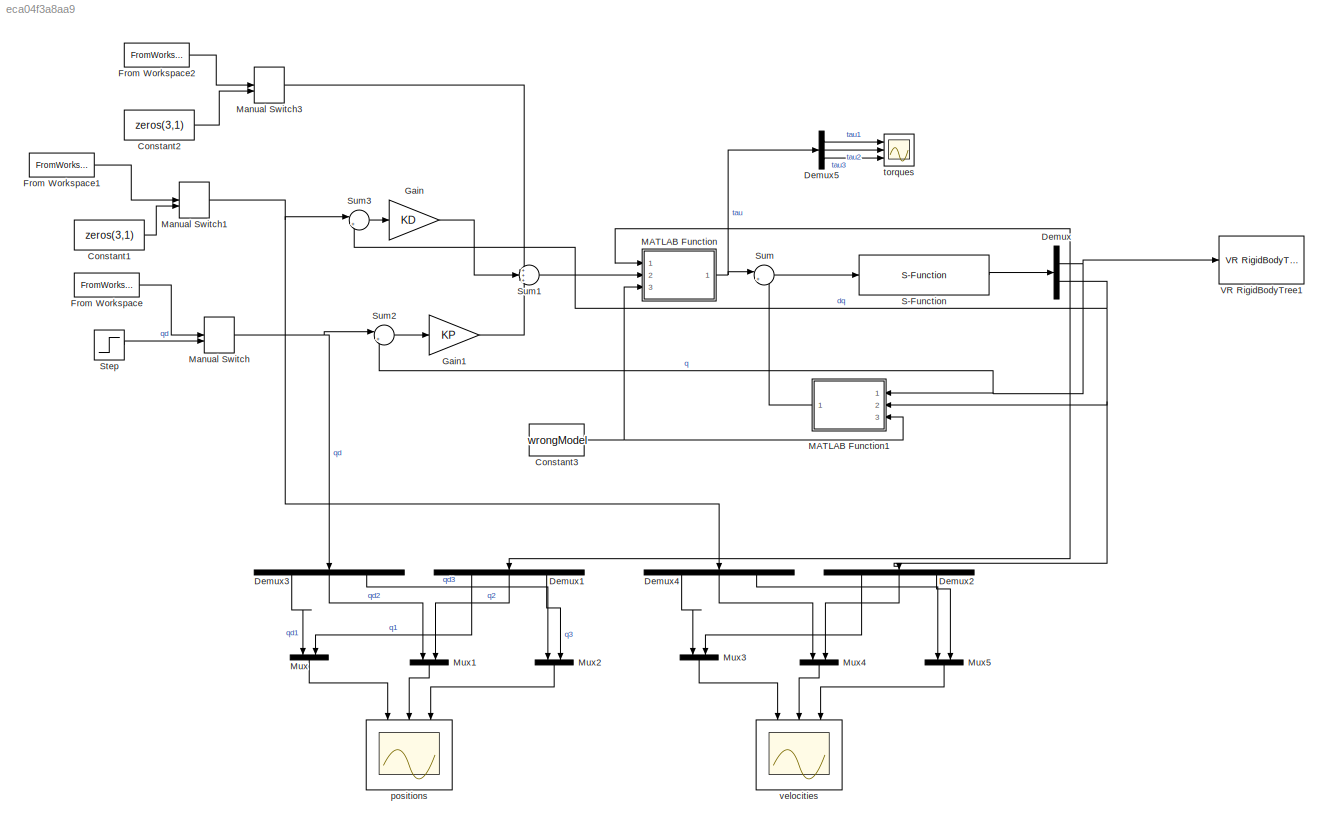
MODEL slx_eca04f3a8aa9
KIND model
CONFIG AbsTol = auto
CONFIG EnableMultiTasking = off
CONFIG FixedStep = Ts
CONFIG MaxStep = auto
CONFIG MinStep = auto
CONFIG RelTol = 1e-3
CONFIG SampleTimeConstraint = Unconstrained
CONFIG SolverName = FixedStepAuto
CONFIG StartTime = 0.0
CONFIG StopTime = 5
BLOCK [Constant] Constant1
  Value = zeros(3,1)
BLOCK [Constant] Constant2
  Value = zeros(3,1)
BLOCK [Constant] Constant3
  Value = wrongModel
BLOCK [Demux] Demux
  Outputs = 2
  Ports = [1, 2]
BLOCK [Demux] Demux1
  NameLocation = left
  Outputs = myRobot.N
  Ports = [1, 3]
BLOCK [Demux] Demux2
  NameLocation = left
  Outputs = myRobot.N
  Ports = [1, 3]
BLOCK [Demux] Demux3
  NameLocation = left
  Outputs = myRobot.N
  Ports = [1, 3]
BLOCK [Demux] Demux4
  NameLocation = left
  Outputs = myRobot.N
  Ports = [1, 3]
BLOCK [Demux] Demux5
  Outputs = 3
  Ports = [1, 3]
BLOCK [FromWorkspace] From Workspace
  VariableName = qd
BLOCK [FromWorkspace] From Workspace1
  VariableName = dqd
BLOCK [FromWorkspace] From Workspace2
  VariableName = ddqd
BLOCK [Gain] Gain
  Gain = KD
BLOCK [Gain] Gain1
  Gain = KP
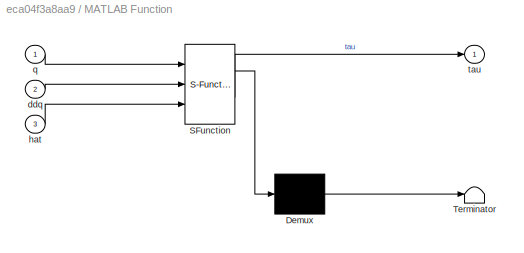
BLOCK [SubSystem] MATLAB Function
  ErrorFcn = Stateflow.Translate.translate
  PermitHierarchicalResolution = ExplicitOnly
  Ports = [3, 1]
  RequestExecContextInheritance = off
  SFBlockType = MATLAB Function
  TreatAsAtomicUnit = on
BLOCK [Demux] MATLAB Function/ Demux 
  Outputs = 1
  Ports = [1, 1]
BLOCK [S-Function] MATLAB Function/ SFunction 
  EnableBusSupport = on
  FunctionName = sf_sfun
  PortCounts = [3 2]
  Ports = [3, 2]
  SFcnIsStateOwnerBlock = off
  SFunctionDeploymentMode = off
  Tag = Stateflow S-Function 2
BLOCK [Terminator] MATLAB Function/ Terminator 
BLOCK [Inport] MATLAB Function/ddq
  Port = 2
BLOCK [Inport] MATLAB Function/hat
  Port = 3
BLOCK [Inport] MATLAB Function/q
BLOCK [Outport] MATLAB Function/tau
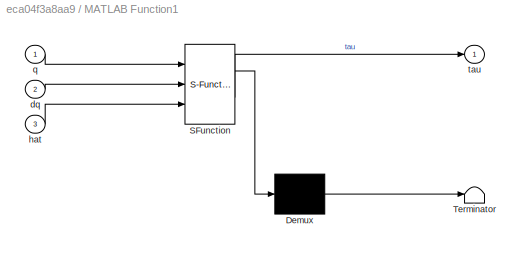
BLOCK [SubSystem] MATLAB Function1
  ErrorFcn = Stateflow.Translate.translate
  PermitHierarchicalResolution = ExplicitOnly
  Ports = [3, 1]
  RequestExecContextInheritance = off
  SFBlockType = MATLAB Function
  TreatAsAtomicUnit = on
BLOCK [Demux] MATLAB Function1/ Demux 
  Outputs = 1
  Ports = [1, 1]
BLOCK [S-Function] MATLAB Function1/ SFunction 
  EnableBusSupport = on
  FunctionName = sf_sfun
  PortCounts = [3 2]
  Ports = [3, 2]
  SFcnIsStateOwnerBlock = off
  SFunctionDeploymentMode = off
  Tag = Stateflow S-Function 1
BLOCK [Terminator] MATLAB Function1/ Terminator 
BLOCK [Inport] MATLAB Function1/dq
  Port = 2
BLOCK [Inport] MATLAB Function1/hat
  Port = 3
BLOCK [Inport] MATLAB Function1/q
BLOCK [Outport] MATLAB Function1/tau
BLOCK [ManualSwitch] Manual Switch
BLOCK [ManualSwitch] Manual Switch1
BLOCK [ManualSwitch] Manual Switch3
BLOCK [Mux] Mux
  DisplayOption = bar
  Inputs = 2
  NameLocation = left
  Ports = [2, 1]
BLOCK [Mux] Mux1
  DisplayOption = bar
  Inputs = 2
  NameLocation = left
  Ports = [2, 1]
BLOCK [Mux] Mux2
  DisplayOption = bar
  Inputs = 2
  NameLocation = left
  Ports = [2, 1]
BLOCK [Mux] Mux3
  DisplayOption = bar
  Inputs = 2
  NameLocation = left
  Ports = [2, 1]
BLOCK [Mux] Mux4
  DisplayOption = bar
  Inputs = 2
  NameLocation = left
  Ports = [2, 1]
BLOCK [Mux] Mux5
  DisplayOption = bar
  Inputs = 2
  NameLocation = left
  Ports = [2, 1]
BLOCK [S-Function] S-Function
  EnableBusSupport = off
  FunctionName = fwd_dyn_joint_lagrangian
  Parameters = myRobot,qi,dqi
  Ports = [1, 1]
  SFcnIsStateOwnerBlock = off
  SFunctionDeploymentMode = off
BLOCK [Step] Step
  After = ones(3,1)
  SampleTime = 0
  Time = 0
BLOCK [Sum] Sum
  Inputs = |++
  Ports = [2, 1]
BLOCK [Sum] Sum1
  Inputs = +++
  Ports = [3, 1]
BLOCK [Sum] Sum2
  Inputs = |+-
  Ports = [2, 1]
BLOCK [Sum] Sum3
  Inputs = |+-
  Ports = [2, 1]
BLOCK [Reference] VR RigidBodyTree1  REF=vrlib/VR RigidBodyTree
  Ports = [1]
  SourceBlock = vrlib/VR RigidBodyTree
  SourceProductBaseCode = SL
  SourceType = VR RigidBodyTree
BLOCK [Scope] positions
  Floating = off
  NameLocation = left
  NumInputPorts = 3
  Ports = [3]
  ScopeSpecificationString = Simulink.scopes.TimeScopeBlockCfg('CurrentConfiguration', extmgr.ConfigurationSet(extmgr.Configuration('Core','General UI',true),extmgr.Configuration('Core','Source UI',true),extmgr.Configuration('Sources','WiredSimulink',true,'DataLoggingVariableName','ScopeData1'),extmgr.Configuration('Visuals','Time Domain',true,'SerializedDisplays',{struct('MinYLimReal','-0.54448','MaxYLimReal','3.66981','YLab...<+3368ch>
BLOCK [Scope] torques
  Floating = off
  NumInputPorts = 3
  Ports = [3]
  ScopeSpecificationString = Simulink.scopes.TimeScopeBlockCfg('CurrentConfiguration', extmgr.ConfigurationSet(extmgr.Configuration('Core','General UI',true),extmgr.Configuration('Core','Source UI',true),extmgr.Configuration('Sources','WiredSimulink',true,'DataLoggingVariableName','ScopeData2'),extmgr.Configuration('Visuals','Time Domain',true,'SerializedDisplays',{struct('MinYLimReal','-19.33803','MaxYLimReal','79.67089','YL...<+3280ch>
BLOCK [Scope] velocities
  Floating = off
  NameLocation = left
  NumInputPorts = 3
  Ports = [3]
  ScopeSpecificationString = Simulink.scopes.TimeScopeBlockCfg('CurrentConfiguration', extmgr.ConfigurationSet(extmgr.Configuration('Core','General UI',true),extmgr.Configuration('Core','Source UI',true),extmgr.Configuration('Sources','WiredSimulink',true),extmgr.Configuration('Visuals','Time Domain',true,'SerializedDisplays',{struct('MinYLimReal','-6.43217','MaxYLimReal','6.61124','YLabelReal','','MinYLimMag','0.00000','MaxY...<+2805ch>
LINE Constant1:1 -> Manual Switch1:2
LINE Constant2:1 -> Manual Switch3:2
NET Constant3:1 -> MATLAB Function1:3, MATLAB Function:3
LINE Demux1:1 -> Mux:2
LINE Demux1:2 -> Mux1:2
LINE Demux1:3 -> Mux2:2
LINE Demux2:1 -> Mux3:2
LINE Demux2:2 -> Mux4:2
LINE Demux2:3 -> Mux5:2
LINE Demux3:1 -> Mux:1
LINE Demux3:2 -> Mux1:1
LINE Demux3:3 -> Mux2:1
LINE Demux4:1 -> Mux3:1
LINE Demux4:2 -> Mux4:1
LINE Demux4:3 -> Mux5:1
LINE Demux5:1 -> torques:1
LINE Demux5:2 -> torques:2
LINE Demux5:3 -> torques:3
NET Demux:1 -> Demux1:1, MATLAB Function1:1, MATLAB Function:1, Sum2:2, VR RigidBodyTree1:1
NET Demux:2 -> Demux2:1, MATLAB Function1:2, Sum3:2
LINE From Workspace1:1 -> Manual Switch1:1
LINE From Workspace2:1 -> Manual Switch3:1
LINE From Workspace:1 -> Manual Switch:1
LINE Gain1:1 -> Sum1:3
LINE Gain:1 -> Sum1:2
LINE MATLAB Function1:1 -> Sum:2
NET MATLAB Function:1 -> Demux5:1, Sum:1
NET Manual Switch1:1 -> Demux4:1, Sum3:1
LINE Manual Switch3:1 -> Sum1:1
NET Manual Switch:1 -> Demux3:1, Sum2:1
LINE Mux1:1 -> positions:2
LINE Mux2:1 -> positions:3
LINE Mux3:1 -> velocities:1
LINE Mux4:1 -> velocities:2
LINE Mux5:1 -> velocities:3
LINE Mux:1 -> positions:1
LINE S-Function:1 -> Demux:1
LINE Step:1 -> Manual Switch:2
LINE Sum1:1 -> MATLAB Function:2
LINE Sum2:1 -> Gain1:1
LINE Sum3:1 -> Gain:1
LINE Sum:1 -> S-Function:1
note: NET lines group one-source signal fan-out (src -> all destinations, sorted); 1:1 wires keep LINE
CHART MATLAB Function states=1 transitions=1
  STATE_LABEL 'eML_blk_kernel()'
  STATE_LABEL 'SCRIPT:\nfunction tau = B(q, ddq, hat)\nif hat == 0\n    B = getB(q);\nelse\n    B = getBHat(q);\nend\n\ntau = B*ddq;\n\n'
CHART MATLAB Function1 states=1 transitions=1
  STATE_LABEL 'eML_blk_kernel()'
  STATE_LABEL 'SCRIPT:\nfunction tau = N(q, dq, hat)\nif hat == 0\n    tau = getN(q, dq);\nelse\n    tau = getNHat(q, dq);\nend\n\n'
CHART  states=0 transitions=0
CHART  states=0 transitions=0
